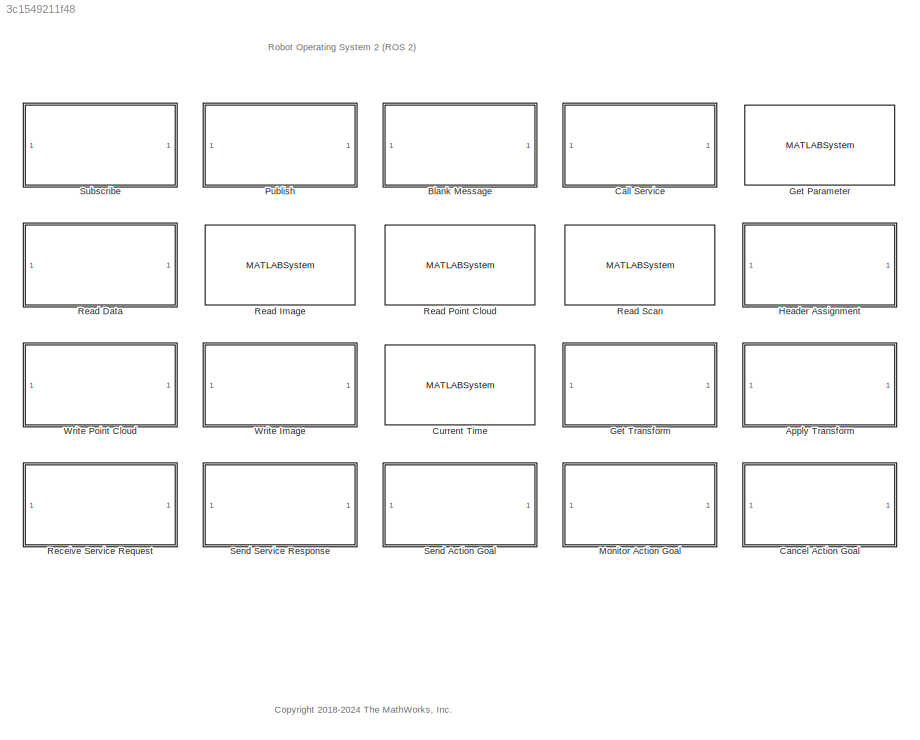
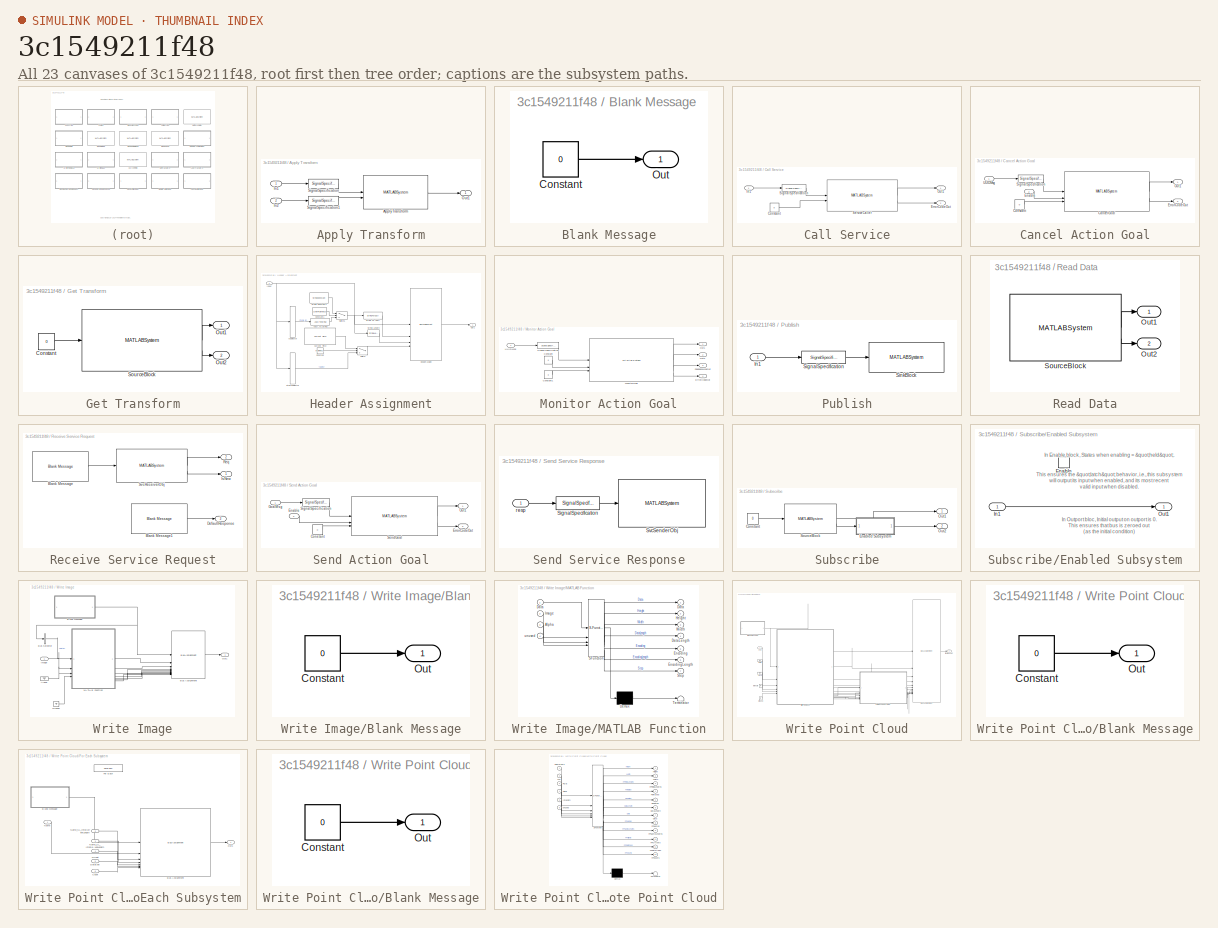
[diagram: thumbnail index - all 23 canvases of the model, root first then tree order]
MODEL slx_3c1549211f48
KIND library
CONFIG AbsTol = auto
CONFIG EnableMultiTasking = on
CONFIG FixedStep = auto
CONFIG MaxStep = auto
CONFIG MinStep = auto
CONFIG RelTol = 1e-3
CONFIG SampleTimeConstraint = Unconstrained
CONFIG SolverName = ode45
CONFIG StartTime = 0.0
CONFIG StopTime = 10.0
BLOCK [SubSystem] Apply Transform
  InitFcn = ros.slros.internal.block.errorIfBlocksConflict(bdroot(gcb));
  MaskHideContents = on
  ModelCloseFcn = ros.slros2.internal.bus.Util.clearSLBusesInGlobalScope(gcb);
  SystemSampleTime = SampleTime
BLOCK [MATLABSystem] Apply Transform/ApplyTransform
  BlockId = APTF_ros2lib_222
  EntityMsgType = geometry_msgs/QuaternionStamped
  MaskType = ros.slros2.internal.block.ApplyTransform
  ModelName = ros2lib
  SLOutputBusName = SL_Bus_geometry_msgs_QuaternionStamped
  System = ros.slros2.internal.block.ApplyTransform
BLOCK [Inport] Apply Transform/In1
BLOCK [Inport] Apply Transform/In2
  Port = 2
BLOCK [Outport] Apply Transform/Out1
BLOCK [SignalSpecification] Apply Transform/SignalSpecification
  BusOutputAsStruct = on
  LockScale = on
  OutDataTypeStr = Bus: SL_Bus_geometry_msgs_TransformStamped
BLOCK [SignalSpecification] Apply Transform/SignalSpecification1
  BusOutputAsStruct = on
  LockScale = on
  OutDataTypeStr = Bus: SL_Bus_geometry_msgs_QuaternionStamped
BLOCK [SubSystem] Blank Message
  InitFcn = ros.slros.internal.block.errorIfBlocksConflict(bdroot(gcb));
  LoadFcn = ros.slros2.internal.block.MessageBlockMask.messageLoadFcn(gcb);
  MaskHideContents = on
  ModelCloseFcn = ros.slros2.internal.bus.Util.clearSLBusesInGlobalScope(gcb);
BLOCK [Constant] Blank Message/Constant
  LockScale = on
  OutDataTypeStr = Bus: SL_Bus_geometry_msgs_Point
  SampleTime = SampleTime
  Value = 0
BLOCK [Outport] Blank Message/Out
  LockScale = on
  VectorParamsAs1DForOutWhenUnconnected = off
BLOCK [SubSystem] Call Service
  InitFcn = ros.slros.internal.block.errorIfBlocksConflict(bdroot(gcb));
  LoadFcn = ros.slros2.internal.block.ServiceCallBlockMask.messageLoadFcn(gcb);
  MaskHideContents = on
  ModelCloseFcn = ros.slros2.internal.bus.Util.clearSLBusesInGlobalScope(gcb);
  TreatAsAtomicUnit = on
BLOCK [Constant] Call Service/Constant
  OutDataTypeStr = Bus: SL_Bus_std_srvs_EmptyResponse
  SampleTime = -1
  Value = 0
  VectorParams1D = off
BLOCK [Outport] Call Service/ErrorCodeOut
  Port = 2
BLOCK [Inport] Call Service/In1
BLOCK [Outport] Call Service/Out1
BLOCK [MATLABSystem] Call Service/ServiceCaller
  BlockId = ServCall_ros2lib_179
  ConnectionTimeout = 5
  IsPersistentConnection = off
  MaskType = ros.slros2.internal.block.ServiceCaller
  ModelName = ros2lib
  QOSDeadline = QOSDeadline
  QOSDepth = QOSDepth
  QOSDurability = Volatile
  QOSHistory = Keep last
  QOSLeaseDuration = QOSLeaseDuration
  QOSLifespan = QOSLifespan
  QOSLiveliness = Automatic
  QOSReliability = Reliable
  SLInputBusName = SL_Bus_std_srvs_EmptyRequest
  SLOutputBusName = SL_Bus_std_srvs_EmptyResponse
  ServiceName = /my_service
  ServiceType = std_srvs/Empty
  System = ros.slros2.internal.block.ServiceCaller
BLOCK [SignalSpecification] Call Service/SignalSpecification
  BusOutputAsStruct = on
  LockScale = on
  OutDataTypeStr = Bus: SL_Bus_std_srvs_EmptyRequest
BLOCK [SubSystem] Cancel Action Goal
  InitFcn = ros.slros.internal.ROSUtil.checkSendGoalBlkAvailability(gcb);
  MaskHideContents = on
  ModelCloseFcn = ros.slros2.internal.bus.Util.clearSLBusesInGlobalScope(gcb);
BLOCK [MATLABSystem] Cancel Action Goal/CancelGoal
  BlockId = ActCancel_ros2lib_244
  MaskType = ros.slros2.internal.block.CancelActionGoal
  ModelName = ros2lib
  SLResponseOutputBusName = SL_Bus_action_msgs_CancelGoalResponse
  SLUUIDInputBusName = SL_Bus_unique_identifier_msgs_UUID
  System = ros.slros2.internal.block.CancelActionGoal
BLOCK [Constant] Cancel Action Goal/Constant
  OutDataTypeStr = Bus: SL_Bus_action_msgs_CancelGoalResponse
  Value = 0
BLOCK [Inport] Cancel Action Goal/Enable
  OutDataTypeStr = boolean
  Port = 2
BLOCK [Outport] Cancel Action Goal/ErrorCodeOut
  Port = 2
BLOCK [Outport] Cancel Action Goal/Out1
BLOCK [SignalSpecification] Cancel Action Goal/SignalSpecification
  BusOutputAsStruct = on
  LockScale = on
  OutDataTypeStr = Bus: SL_Bus_unique_identifier_msgs_UUID
BLOCK [Inport] Cancel Action Goal/UUIDMsg
BLOCK [MATLABSystem] Current Time
  InitFcn = ros.slros2.internal.block.CurrentTimeBlockMask.dispatch('initFcn', gcb);
  MaskType = ros.slros2.internal.block.CurrentTime
  ModelCloseFcn = ros.slros2.internal.block.CurrentTimeBlockMask.dispatch('modelCloseFcn');
  ModelName = untitled
  OutputFormat = bus
  SampleTime = SampleTime
  System = ros.slros2.internal.block.CurrentTime
BLOCK [MATLABSystem] Get Parameter
  BlockId = ParamGet_ros2lib_196
  MaskType = ros.slros2.internal.block.GetParameter
  ModelName = ros2lib
  ParameterInitialValue = ParameterInitialValue
  ParameterMaxArrayLength = ParameterMaxArrayLength
  ParameterName = mynamespace.param
  ParameterType = double
  SampleTime = SampleTime
  System = ros.slros2.internal.block.GetParameter
BLOCK [SubSystem] Get Transform
  InitFcn = ros.slros.internal.block.errorIfBlocksConflict(bdroot(gcb));
  MaskHideContents = on
  ModelCloseFcn = ros.slros2.internal.bus.Util.clearSLBusesInGlobalScope(gcb);
  TreatAsAtomicUnit = on
BLOCK [Constant] Get Transform/Constant
  OutDataTypeStr = Bus: SL_Bus_geometry_msgs_TransformStamped
  SampleTime = SampleTime
  Value = 0
BLOCK [Outport] Get Transform/Out1
BLOCK [Outport] Get Transform/Out2
  Port = 2
BLOCK [MATLABSystem] Get Transform/SourceBlock
  BlockId = TF_ros2lib_223
  DynamicQOSDeadline = DynamicQoSDeadline
  DynamicQOSLeaseDuration = DynamicQoSLeaseDuration
  DynamicQOSLifespan = DynamicQoSLifespan
  DynamicQOSLiveliness = Automatic
  DynamicQoSDepth = DynamicQoSDepth
  DynamicQoSDurability = Volatile
  DynamicQoSHistory = Keep last
  DynamicQoSReliability = Reliable
  MaskType = ros.slros2.internal.block.GetTransform
  ModelName = ros2lib
  OutputFormat = bus
  SLBusName = SL_Bus_geometry_msgs_TransformStamped
  SampleTime = -1
  StaticQOSDeadline = StaticQoSDeadline
  StaticQOSLeaseDuration = StaticQoSLeaseDuration
  StaticQOSLifespan = StaticQoSLifespan
  StaticQOSLiveliness = Automatic
  StaticQoSDepth = StaticQoSDepth
  StaticQoSDurability = Volatile
  StaticQoSHistory = Keep last
  StaticQoSReliability = Reliable
  System = ros.slros2.internal.block.GetTransform
BLOCK [SubSystem] Header Assignment
  MaskHideContents = on
  TreatAsAtomicUnit = on
BLOCK [ASCIIToString] Header Assignment/ASCII to String
BLOCK [Constant] Header Assignment/Constant
  Value = InsertTimeStamp
BLOCK [Constant] Header Assignment/Constant1
  Value = SetFrameID
BLOCK [Reference] Header Assignment/Current Time  REF=$bdroot/Current Time
  SourceBlock = $bdroot/Current Time
  SourceType = ros.slros2.internal.block.CurrentTime
BLOCK [BusAssignment] Header Assignment/HeaderAssign
  AssignedSignals = header.frame_id,header.frame_id_SL_Info.CurrentLength,header.stamp
BLOCK [BusSelector] Header Assignment/IdSelector
  OutputSignals = header.frame_id
BLOCK [Inport] Header Assignment/Input
BLOCK [Outport] Header Assignment/Out1
BLOCK [BusSelector] Header Assignment/StampSelector
  OutputSignals = header.stamp
BLOCK [StringConstant] Header Assignment/String Constant1
  String = FrameID
BLOCK [StringLength] Header Assignment/String Length
BLOCK [StringToASCII] Header Assignment/String To ASCII
  OutputVectorSize = 128
BLOCK [Switch] Header Assignment/Switch
  Criteria = u2 ~= 0
  InputSameDT = off
  SaturateOnIntegerOverflow = off
  Threshold = 1.5
BLOCK [Switch] Header Assignment/Switch1
  Criteria = u2 ~= 0
  InputSameDT = off
  SaturateOnIntegerOverflow = off
  Threshold = 1.5
BLOCK [SubSystem] Monitor Action Goal
  CopyFcn = ros.slros2.internal.block.MonitorActionGoalBlockMask.dispatch('copyBlockInit',gcb);
  DeleteFcn = ros.slros.internal.ROSUtil.removeBlkPairingRegistration(gcb);
  InitFcn = ros.slros.internal.block.errorIfBlocksConflict(bdroot(gcb));\nros.slros.internal.ROSUtil.checkSendGoalBlkPairAvailability(gcb);
  LoadFcn = ros.slros2.internal.bus.Util.clearSLBusesInGlobalScope(gcb);
  MaskHideContents = on
BLOCK [Constant] Monitor Action Goal/Constant
  OutDataTypeStr = Bus: SL_Bus_example_interfaces_FibonacciResult
  Value = 0
BLOCK [Constant] Monitor Action Goal/Constant1
  OutDataTypeStr = Bus: SL_Bus_example_interfaces_FibonacciFeedback
  Value = 0
BLOCK [Outport] Monitor Action Goal/ErrorCodeOut
  Port = 4
BLOCK [Outport] Monitor Action Goal/FeedbackMsgOut
  Port = 3
BLOCK [MATLABSystem] Monitor Action Goal/MonitorGoal
  ActionName = /fibonacci
  ActionType = example_interfaces/Fibonacci
  BlockId = ActSend_ros2lib_226
  MaskType = ros.slros2.internal.block.MonitorActionGoal
  ModelName = ros2lib
  SLFeedbackOutputBusName = SL_Bus_example_interfaces_FibonacciFeedback
  SLResultOutputBusName = SL_Bus_example_interfaces_FibonacciResult
  SLUUIDInputBusName = SL_Bus_unique_identifier_msgs_UUID
  System = ros.slros2.internal.block.MonitorActionGoal
BLOCK [Outport] Monitor Action Goal/Out1
BLOCK [Outport] Monitor Action Goal/Out2
  Port = 2
BLOCK [SignalSpecification] Monitor Action Goal/SignalSpecification
  BusOutputAsStruct = on
  LockScale = on
  OutDataTypeStr = Bus: SL_Bus_unique_identifier_msgs_UUID
BLOCK [Inport] Monitor Action Goal/UUIDMsg
BLOCK [SubSystem] Publish
  InitFcn = ros.slros.internal.block.errorIfBlocksConflict(bdroot(gcb));
  LoadFcn = ros.slros2.internal.block.PublishBlockMask.messageLoadFcn(gcb);
  MaskHideContents = on
  ModelCloseFcn = ros.slros2.internal.bus.Util.clearSLBusesInGlobalScope(gcb);
BLOCK [Inport] Publish/In1
  LockScale = on
BLOCK [SignalSpecification] Publish/SignalSpecification
  BusOutputAsStruct = on
  LockScale = on
  OutDataTypeStr = Bus: SL_Bus_geometry_msgs_Point
BLOCK [MATLABSystem] Publish/SinkBlock
  BlockId = Pub_ros2lib_156
  MaskType = ros.slros2.internal.block.Publisher
  ModelName = ros2lib
  QOSDeadline = QOSDeadline
  QOSDepth = QOSDepth
  QOSDurability = Volatile
  QOSHistory = Keep last
  QOSLeaseDuration = QOSLeaseDuration
  QOSLifespan = QOSLifespan
  QOSLiveliness = Automatic
  QOSReliability = Reliable
  ROSMessageType = geometry_msgs/Point
  ROSTopic = /my_topic
  SLBusName = SL_Bus_geometry_msgs_Point
  System = ros.slros2.internal.block.Publisher
BLOCK [SubSystem] Read Data
  InitFcn = ros.slros.internal.block.errorIfBlocksConflict(bdroot(gcb));
  MaskHideContents = on
  ModelCloseFcn = ros.slros.internal.block.ReadDataBlockMask.modelCloseFcn(gcb);
  TreatAsAtomicUnit = on
BLOCK [Outport] Read Data/Out1
BLOCK [Outport] Read Data/Out2
  Port = 2
BLOCK [MATLABSystem] Read Data/SourceBlock
  LogfileType = rosbag2
  MaskType = ros.slros2.internal.block.ReadData
  ModelName = ros2lib
  SampleTime = sampleTime
  System = ros.slros2.internal.block.ReadData
  Topic = /my_topic
BLOCK [MATLABSystem] Read Image
  ImageEncoding = rgb8
  InitFcn = ros.slros.internal.block.errorIfBlocksConflict(bdroot(gcb));
  MaskBlockDVGIcon = MATLABSystemBlock.ros2lib_readimage
  MaskType = ros.slros2.internal.block.ReadImage
  MaximumImageSize = [ 2000, 2000 ]
  ShowAlphaOutput = off
  ShowErrorCodeOutput = on
  System = ros.slros2.internal.block.ReadImage
  VariableSizeOutputs = off
BLOCK [MATLABSystem] Read Point Cloud
  InitFcn = ros.slros.internal.block.errorIfBlocksConflict(bdroot(gcb));
  MaskBlockDVGIcon = MATLABSystemBlock.ros2lib_readpointcloud
  MaskType = ros.slros2.internal.block.ReadPointCloud
  MaximumPointCloudSize = [480, 640]
  PreserveStructure = off
  ShowErrorCodeOutput = on
  ShowIntensityOutput = off
  ShowRGBOutput = off
  System = ros.slros2.internal.block.ReadPointCloud
  VariableSizeOutputs = off
BLOCK [MATLABSystem] Read Scan
  InitFcn = ros.slros.internal.block.errorIfBlocksConflict(bdroot(gcb));
  MaskBlockDVGIcon = MATLABSystemBlock.ros2lib_readscan
  MaskType = ros.slros2.internal.block.ReadScan
  MaximumArrayLength = 100
  ShowAnglesOutput = on
  ShowErrorCodeOutput = on
  ShowIntensityOutput = off
  System = ros.slros2.internal.block.ReadScan
  VariableSizeOutputs = off
BLOCK [SubSystem] Receive Service Request
  CopyFcn = ros.slros2.internal.block.ReceiveRequestBlockMask.dispatch('copyBlockInit',gcb);
  DeleteFcn = ros.slros2.internal.block.ReceiveRequestBlockMask.dispatch('deleteFcnCallback',gcb);
  InitFcn = ros.slros.internal.block.errorIfBlocksConflict(bdroot(gcb));\nros.slros.internal.ROSUtil.checkSvcServerBlkAvailability(gcb);\nros.slros2.internal.block.ReceiveRequestBlockMask.initializeServer(gcb);
  LoadFcn = ros.slros2.internal.block.ReceiveRequestBlockMask.messageLoadFcn(gcb);
  MaskHideContents = on
  ModelCloseFcn = ros.slros2.internal.bus.Util.clearSLBusesInGlobalScope(gcb);
  PreSaveFcn = ros.slros2.internal.block.ReceiveRequestBlockMask.clearServer(gcb);
  StopFcn = ros.slros2.internal.block.ReceiveRequestBlockMask.clearServer(gcb);
BLOCK [Reference] Receive Service Request/Blank Message  REF=$bdroot/Blank Message
  SourceBlock = $bdroot/Blank Message
  SourceType = ROS2 Blank Message
BLOCK [Reference] Receive Service Request/Blank Message1  REF=$bdroot/Blank Message
  SourceBlock = $bdroot/Blank Message
  SourceType = ROS2 Blank Message
BLOCK [Outport] Receive Service Request/DefaultResponse
  Port = 3
BLOCK [Outport] Receive Service Request/IsNew
BLOCK [Outport] Receive Service Request/Req
  Port = 2
BLOCK [MATLABSystem] Receive Service Request/SvcReceiverObj
  BlockId = ServRec_ros2lib_224
  MaskType = ros.slros2.internal.block.SvcRequestReceiver
  ModelName = ros2lib
  QOSDeadline = QOSDeadline
  QOSDepth = QOSDepth
  QOSDurability = Volatile
  QOSHistory = Keep last
  QOSLeaseDuration = QOSLeaseDuration
  QOSLifespan = QOSLifespan
  QOSLiveliness = Automatic
  QOSReliability = Reliable
  SLBusName = SL_Bus_std_srvs_EmptyRequest
  ServiceName = /my_service
  ServiceType = std_srvs/Empty
  System = ros.slros2.internal.block.SvcRequestReceiver
BLOCK [SubSystem] Send Action Goal
  CopyFcn = ros.slros2.internal.block.SendActionGoalBlockMask.dispatch('copyBlockInit',gcb);
  DeleteFcn = ros.slros.internal.ROSUtil.removeBlkPairingRegistration(gcb);
  InitFcn = ros.slros.internal.block.errorIfBlocksConflict(bdroot(gcb));
  LoadFcn = ros.slros2.internal.block.SendActionGoalBlockMask.messageLoadFcn(gcb);
  MaskHideContents = on
  ModelCloseFcn = ros.slros2.internal.bus.Util.clearSLBusesInGlobalScope(gcb);
BLOCK [Constant] Send Action Goal/Constant
  OutDataTypeStr = Bus: SL_Bus_unique_identifier_msgs_UUID
  Value = 0
BLOCK [Inport] Send Action Goal/Enable
  OutDataTypeStr = boolean
  Port = 2
BLOCK [Outport] Send Action Goal/ErrorCodeOut
  Port = 2
BLOCK [Inport] Send Action Goal/GoalMsg
BLOCK [Outport] Send Action Goal/Out1
BLOCK [MATLABSystem] Send Action Goal/SendGoal
  ActionName = /fibonacci
  ActionType = example_interfaces/Fibonacci
  BlockId = ActSend_ros2lib_226
  CancelServiceQoSDeadline = CancelServiceQoSDeadline
  CancelServiceQoSDepth = CancelServiceQoSDepth
  CancelServiceQoSDurability = Volatile
  CancelServiceQoSHistory = Keep last
  CancelServiceQoSLeaseDuration = CancelServiceQoSLeaseDuration
  CancelServiceQoSLifespan = CancelServiceQoSLifespan
  CancelServiceQoSLiveliness = Automatic
  CancelServiceQoSReliability = Reliable
  FeedbackTopicQoSDeadline = FeedbackTopicQoSDeadline
  FeedbackTopicQoSDepth = FeedbackTopicQoSDepth
  FeedbackTopicQoSDurability = Volatile
  FeedbackTopicQoSHistory = Keep last
  FeedbackTopicQoSLeaseDuration = FeedbackTopicQoSLeaseDuration
  FeedbackTopicQoSLifespan = FeedbackTopicQoSLifespan
  FeedbackTopicQoSLiveliness = Automatic
  FeedbackTopicQoSReliability = Reliable
  GoalServiceQoSDeadline = GoalServiceQoSDeadline
  GoalServiceQoSDepth = GoalServiceQoSDepth
  GoalServiceQoSDurability = Volatile
  GoalServiceQoSHistory = Keep last
  GoalServiceQoSLeaseDuration = GoalServiceQoSLeaseDuration
  GoalServiceQoSLifespan = GoalServiceQoSLifespan
  GoalServiceQoSLiveliness = Automatic
  GoalServiceQoSReliability = Reliable
  MaskType = ros.slros2.internal.block.SendActionGoal
  ModelName = ros2lib
  OutputROSMessageType = unique_identifier_msgs/UUID
  ResultServiceQoSDeadline = ResultServiceQoSDeadline
  ResultServiceQoSDepth = ResultServiceQoSDepth
  ResultServiceQoSDurability = Volatile
  ResultServiceQoSHistory = Keep last
  ResultServiceQoSLeaseDuration = ResultServiceQoSLeaseDuration
  ResultServiceQoSLifespan = ResultServiceQoSLifespan
  ResultServiceQoSLiveliness = Automatic
  ResultServiceQoSReliability = Reliable
  SLGoalInputBusName = SL_Bus_example_interfaces_FibonacciGoal
  SLUUIDOutputBusName = SL_Bus_unique_identifier_msgs_UUID
  StatusTopicQoSDeadline = StatusTopicQoSDeadline
  StatusTopicQoSDepth = StatusTopicQoSDepth
  StatusTopicQoSDurability = Transient local
  StatusTopicQoSHistory = Keep last
  StatusTopicQoSLeaseDuration = StatusTopicQoSLeaseDuration
  StatusTopicQoSLifespan = StatusTopicQoSLifespan
  StatusTopicQoSLiveliness = Automatic
  StatusTopicQoSReliability = Reliable
  System = ros.slros2.internal.block.SendActionGoal
BLOCK [SignalSpecification] Send Action Goal/SignalSpecification
  BusOutputAsStruct = on
  LockScale = on
  OutDataTypeStr = Bus: SL_Bus_example_interfaces_FibonacciGoal
BLOCK [SubSystem] Send Service Response
  CopyFcn = ros.slros2.internal.block.SendResponseBlockMask.dispatch('copyBlockInit',gcb);
  DeleteFcn = ros.slros.internal.ROSUtil.removeBlkPairingRegistration(gcb);
  InitFcn = ros.slros.internal.block.errorIfBlocksConflict(bdroot(gcb));\nros.slros.internal.ROSUtil.checkSvcServerBlkAvailability(gcb);
  MaskHideContents = on
BLOCK [SignalSpecification] Send Service Response/SignalSpecification
  BusOutputAsStruct = on
  LockScale = on
  OutDataTypeStr = Bus: SL_Bus_std_srvs_EmptyResponse
BLOCK [MATLABSystem] Send Service Response/SvcSenderObj
  BlockId = ServRec_ros2lib_224
  MaskType = ros.slros2.internal.block.SvcResponseSender
  ModelName = ros2lib
  ServiceName = /my_service
  ServiceType = std_srvs/Empty
  System = ros.slros2.internal.block.SvcResponseSender
BLOCK [Inport] Send Service Response/resp
BLOCK [SubSystem] Subscribe
  InitFcn = ros.slros.internal.block.errorIfBlocksConflict(bdroot(gcb));
  LoadFcn = ros.slros2.internal.block.SubscribeBlockMask.messageLoadFcn(gcb);
  MaskHideContents = on
  ModelCloseFcn = ros.slros2.internal.bus.Util.clearSLBusesInGlobalScope(gcb);
BLOCK [Constant] Subscribe/Constant
  LockScale = on
  OutDataTypeStr = Bus: SL_Bus_geometry_msgs_Point
  SampleTime = sampleTime
  Value = 0
BLOCK [SubSystem] Subscribe/Enabled Subsystem
  TreatAsAtomicUnit = on
BLOCK [EnablePort] Subscribe/Enabled Subsystem/Enable
BLOCK [Inport] Subscribe/Enabled Subsystem/In1
BLOCK [Outport] Subscribe/Enabled Subsystem/Out1
  InitialOutput = 0
  VectorParamsAs1DForOutWhenUnconnected = off
BLOCK [Outport] Subscribe/Out1
  VectorParamsAs1DForOutWhenUnconnected = off
BLOCK [Outport] Subscribe/Out2
  Port = 2
  VectorParamsAs1DForOutWhenUnconnected = off
BLOCK [MATLABSystem] Subscribe/SourceBlock
  BlockId = Sub_ros2lib_139
  MaskType = ros.slros2.internal.block.Subscriber
  ModelName = ros2lib
  QOSDeadline = QOSDeadline
  QOSDepth = QOSDepth
  QOSDurability = Volatile
  QOSHistory = Keep last
  QOSLeaseDuration = QOSLeaseDuration
  QOSLifespan = QOSLifespan
  QOSLiveliness = Automatic
  QOSReliability = Reliable
  ROSMessageType = geometry_msgs/Point
  ROSTopic = /my_topic
  SLBusName = SL_Bus_geometry_msgs_Point
  System = ros.slros2.internal.block.Subscriber
BLOCK [SubSystem] Write Image
  InitFcn = ros.slros.internal.block.errorIfBlocksConflict(bdroot(gcb));\nros.slros2.internal.block.WriteImageBlockMask.dispatch('maskInitialize', gcb);
  MaskHideContents = on
BLOCK [Ground] Write Image/Alpha
BLOCK [SubSystem] Write Image/Blank Message
  InitFcn = ros.slros.internal.block.errorIfBlocksConflict(bdroot(gcb));
  LoadFcn = ros.slros2.internal.block.MessageBlockMask.messageLoadFcn(gcb);
  MaskHideContents = on
  ModelCloseFcn = ros.slros2.internal.bus.Util.clearSLBusesInGlobalScope();
BLOCK [Constant] Write Image/Blank Message/Constant
  LockScale = on
  OutDataTypeStr = Bus: SL_Bus_sensor_msgs_Image
  SampleTime = SampleTime
  Value = 0
BLOCK [Outport] Write Image/Blank Message/Out
  LockScale = on
  VectorParamsAs1DForOutWhenUnconnected = off
BLOCK [BusAssignment] Write Image/Bus Assignment
  AssignedSignals = data,height,width,data_SL_Info.CurrentLength,data_SL_Info.ReceivedLength,encoding,encoding_SL_Info.CurrentLength,encoding_SL_Info.ReceivedLength,step
BLOCK [BusSelector] Write Image/Bus Selector
  OutputSignals = data
BLOCK [Ground] Write Image/Ground
BLOCK [Inport] Write Image/Image
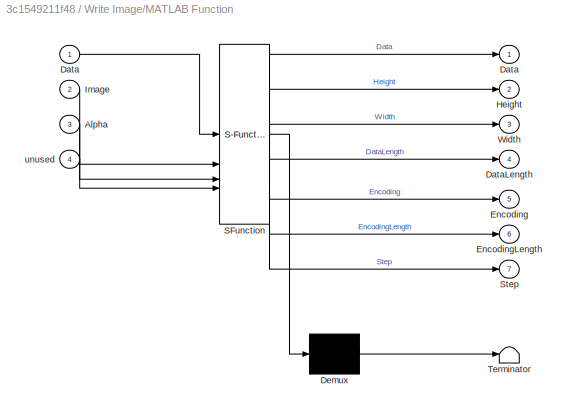
BLOCK [SubSystem] Write Image/MATLAB Function
  ErrorFcn = Stateflow.Translate.translate
  PermitHierarchicalResolution = ExplicitOnly
  SFBlockType = MATLAB Function
  TreatAsAtomicUnit = on
BLOCK [Demux] Write Image/MATLAB Function/ Demux 
  Outputs = 1
BLOCK [S-Function] Write Image/MATLAB Function/ SFunction 
  EnableBusSupport = off
  FunctionName = sf_sfun
  Parameters = EncodingStruct,HasAlpha,ImageEncoding
  PortCounts = [4 8]
  SFcnIsStateOwnerBlock = off
  SFunctionDeploymentMode = off
  Tag = Stateflow S-Function 2
BLOCK [Terminator] Write Image/MATLAB Function/ Terminator 
BLOCK [Inport] Write Image/MATLAB Function/Alpha
  Port = 3
BLOCK [Outport] Write Image/MATLAB Function/Data
BLOCK [Inport] Write Image/MATLAB Function/Data 
BLOCK [Outport] Write Image/MATLAB Function/DataLength
  Port = 4
BLOCK [Outport] Write Image/MATLAB Function/Encoding
  Port = 5
BLOCK [Outport] Write Image/MATLAB Function/EncodingLength
  Port = 6
BLOCK [Outport] Write Image/MATLAB Function/Height
  Port = 2
BLOCK [Inport] Write Image/MATLAB Function/Image
  Port = 2
BLOCK [Outport] Write Image/MATLAB Function/Step
  Port = 7
BLOCK [Outport] Write Image/MATLAB Function/Width
  Port = 3
BLOCK [Inport] Write Image/MATLAB Function/unused
  Port = 4
BLOCK [Outport] Write Image/Out1
BLOCK [SubSystem] Write Point Cloud
  InitFcn = ros.slros.internal.block.errorIfBlocksConflict(bdroot(gcb));\nros.slros2.internal.block.WritePointCloudBlockMask.dispatch('maskInitialize', gcb);
  MaskHideContents = on
BLOCK [Ground] Write Point Cloud/Alpha
BLOCK [SubSystem] Write Point Cloud/Blank Message
  InitFcn = ros.slros.internal.block.errorIfBlocksConflict(bdroot(gcb));
  LoadFcn = ros.slros2.internal.block.MessageBlockMask.messageLoadFcn(gcb);
  MaskHideContents = on
  ModelCloseFcn = ros.slros2.internal.bus.Util.clearSLBusesInGlobalScope();
BLOCK [Constant] Write Point Cloud/Blank Message/Constant
  LockScale = on
  OutDataTypeStr = Bus: SL_Bus_sensor_msgs_PointCloud2
  SampleTime = SampleTime
  Value = 0
BLOCK [Outport] Write Point Cloud/Blank Message/Out
  LockScale = on
  VectorParamsAs1DForOutWhenUnconnected = off
BLOCK [BusAssignment] Write Point Cloud/Bus Assignment
  AssignedSignals = height,width,fields_SL_Info.CurrentLength,fields_SL_Info.ReceivedLength,point_step,row_step,data_SL_Info.CurrentLength,data_SL_Info.ReceivedLength,data,fields
BLOCK [SubSystem] Write Point Cloud/For Each Subsystem
  TreatAsAtomicUnit = on
BLOCK [SubSystem] Write Point Cloud/For Each Subsystem/Blank Message
  InitFcn = ros.slros.internal.block.errorIfBlocksConflict(bdroot(gcb));
  LoadFcn = ros.slros2.internal.block.MessageBlockMask.messageLoadFcn(gcb);
  MaskHideContents = on
  ModelCloseFcn = ros.slros2.internal.bus.Util.clearSLBusesInGlobalScope();
BLOCK [Constant] Write Point Cloud/For Each Subsystem/Blank Message/Constant
  LockScale = on
  OutDataTypeStr = Bus: SL_Bus_sensor_msgs_PointField
  SampleTime = SampleTime
  Value = 0
BLOCK [Outport] Write Point Cloud/For Each Subsystem/Blank Message/Out
  LockScale = on
  VectorParamsAs1DForOutWhenUnconnected = off
BLOCK [BusAssignment] Write Point Cloud/For Each Subsystem/Bus Assignment
  AssignedSignals = name,name_SL_Info.CurrentLength,name_SL_Info.ReceivedLength,offset,datatype,count
BLOCK [Inport] Write Point Cloud/For Each Subsystem/Count
  Partition = on
  PartitionDimension = 1
  PartitionOffset = 0
  PartitionWidth = 1
  Port = 6
BLOCK [Inport] Write Point Cloud/For Each Subsystem/Datatype
  Partition = on
  PartitionDimension = 1
  PartitionOffset = 0
  PartitionWidth = 1
  Port = 5
BLOCK [ForEach] Write Point Cloud/For Each Subsystem/For Each
  DisableCoverage = on
BLOCK [Inport] Write Point Cloud/For Each Subsystem/Name
  Partition = on
  PartitionDimension = 1
  PartitionOffset = 0
  PartitionWidth = ros.slros.internal.bus.Util.getCurrentFieldLength('sensor_msgs/PointField','name','ros2')
BLOCK [Inport] Write Point Cloud/For Each Subsystem/Name_SL_InfoCurrentLength
  Partition = on
  PartitionDimension = 1
  PartitionOffset = 0
  PartitionWidth = 1
  Port = 2
BLOCK [Inport] Write Point Cloud/For Each Subsystem/Name_SL_InfoReceivedLength
  Partition = on
  PartitionDimension = 1
  PartitionOffset = 0
  PartitionWidth = 1
  Port = 3
BLOCK [Inport] Write Point Cloud/For Each Subsystem/Offset
  Partition = on
  PartitionDimension = 1
  PartitionOffset = 0
  PartitionWidth = 1
  Port = 4
BLOCK [Outport] Write Point Cloud/For Each Subsystem/Out1
  ConcatenationDimension = 1
BLOCK [Ground] Write Point Cloud/Ground
BLOCK [Ground] Write Point Cloud/Intensity
BLOCK [Ground] Write Point Cloud/RGB
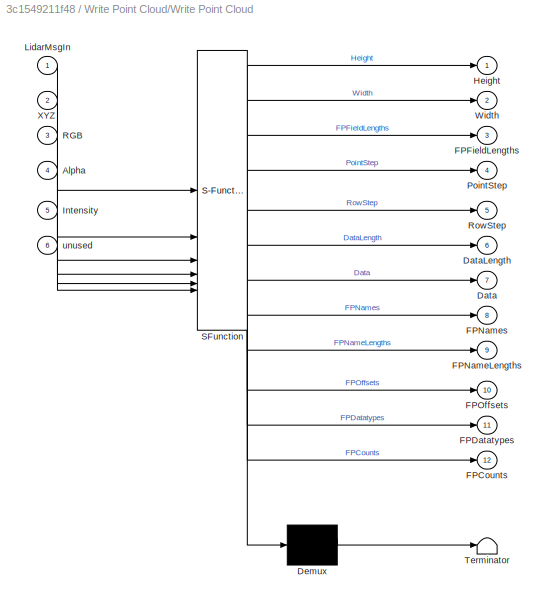
BLOCK [SubSystem] Write Point Cloud/Write Point Cloud
  ErrorFcn = Stateflow.Translate.translate
  PermitHierarchicalResolution = ExplicitOnly
  SFBlockType = MATLAB Function
  TreatAsAtomicUnit = on
BLOCK [Demux] Write Point Cloud/Write Point Cloud/ Demux 
  Outputs = 1
BLOCK [S-Function] Write Point Cloud/Write Point Cloud/ SFunction 
  EnableBusSupport = off
  FunctionName = sf_sfun
  Parameters = FieldNamesStruct,HasAlpha,HasIntensity,HasRGB
  PortCounts = [6 13]
  SFcnIsStateOwnerBlock = off
  SFunctionDeploymentMode = off
  Tag = Stateflow S-Function 1
BLOCK [Terminator] Write Point Cloud/Write Point Cloud/ Terminator 
BLOCK [Inport] Write Point Cloud/Write Point Cloud/Alpha
  Port = 4
BLOCK [Outport] Write Point Cloud/Write Point Cloud/Data
  Port = 7
BLOCK [Outport] Write Point Cloud/Write Point Cloud/DataLength
  Port = 6
BLOCK [Outport] Write Point Cloud/Write Point Cloud/FPCounts
  Port = 12
BLOCK [Outport] Write Point Cloud/Write Point Cloud/FPDatatypes
  Port = 11
BLOCK [Outport] Write Point Cloud/Write Point Cloud/FPFieldLengths
  Port = 3
BLOCK [Outport] Write Point Cloud/Write Point Cloud/FPNameLengths
  Port = 9
BLOCK [Outport] Write Point Cloud/Write Point Cloud/FPNames
  Port = 8
BLOCK [Outport] Write Point Cloud/Write Point Cloud/FPOffsets
  Port = 10
BLOCK [Outport] Write Point Cloud/Write Point Cloud/Height
BLOCK [Inport] Write Point Cloud/Write Point Cloud/Intensity
  Port = 5
BLOCK [Inport] Write Point Cloud/Write Point Cloud/LidarMsgIn
BLOCK [Outport] Write Point Cloud/Write Point Cloud/PointStep
  Port = 4
BLOCK [Inport] Write Point Cloud/Write Point Cloud/RGB
  Port = 3
BLOCK [Outport] Write Point Cloud/Write Point Cloud/RowStep
  Port = 5
BLOCK [Outport] Write Point Cloud/Write Point Cloud/Width
  Port = 2
BLOCK [Inport] Write Point Cloud/Write Point Cloud/XYZ
  Port = 2
BLOCK [Inport] Write Point Cloud/Write Point Cloud/unused
  Port = 6
BLOCK [Inport] Write Point Cloud/XYZ
BLOCK [Outport] Write Point Cloud/lidarMsgOut
ANNOTATION (root): <copyright redacted>
ANNOTATION (root): Robot Operating System 2 (ROS 2)
ANNOTATION Subscribe/Enabled Subsystem: In Enable block, States when enabling = "held". This ensures the "latch" behavior, i.e., this subsystem will output its input when enabled, and its most recent valid input when disabled.
ANNOTATION Subscribe/Enabled Subsystem: In Outport bloc, Initial output on outport is 0. This ensures that bus is zeroed out (as the initial condition)
CHART Write Point Cloud/Write Point Cloud states=1 transitions=1
  STATE_LABEL 'eML_blk_kernel()'
  STATE_LABEL 'SCRIPT:\nfunction [Height, Width, FPFieldLengths, PointStep, ...\n    RowStep, DataLength, Data, FPNames,...\n    FPNameLengths, FPOffsets, FPDatatypes, FPCounts] ...\n    = WritePointCloudFcnBlock(LidarMsgIn, XYZ, RGB, Alpha, Intensity, ~, FieldNamesStruct, HasRGB, HasAlpha, HasIntensity)\n\nunstructured = ismatrix(XYZ); \n\nMaxDataLength = length(LidarMsgIn.data);\nNumFields = length(LidarMsgIn.fields);\n...<+408ch>'
CHART Write Image/MATLAB Function states=1 transitions=1
  STATE_LABEL 'eML_blk_kernel()'
  STATE_LABEL 'SCRIPT:\nfunction [Data, Height, Width, DataLength, Encoding, EncodingLength, Step]...\n    = WriteImageFcnBlock(Data, Image, Alpha, ~, EncodingStruct, ImageEncoding, HasAlpha)\nSelectedEncodingInd = ImageEncoding;\n% Image encoding is set to evaluate in the mask,\n% so the value is an index.\nSelectedEncoding = ros.msg.sensor_msgs.internal.ImageEncoding.AllEncodings{SelectedEncodingInd};\ntype = Encodin...<+985ch>'
CHART  states=0 transitions=0
CHART  states=0 transitions=0
